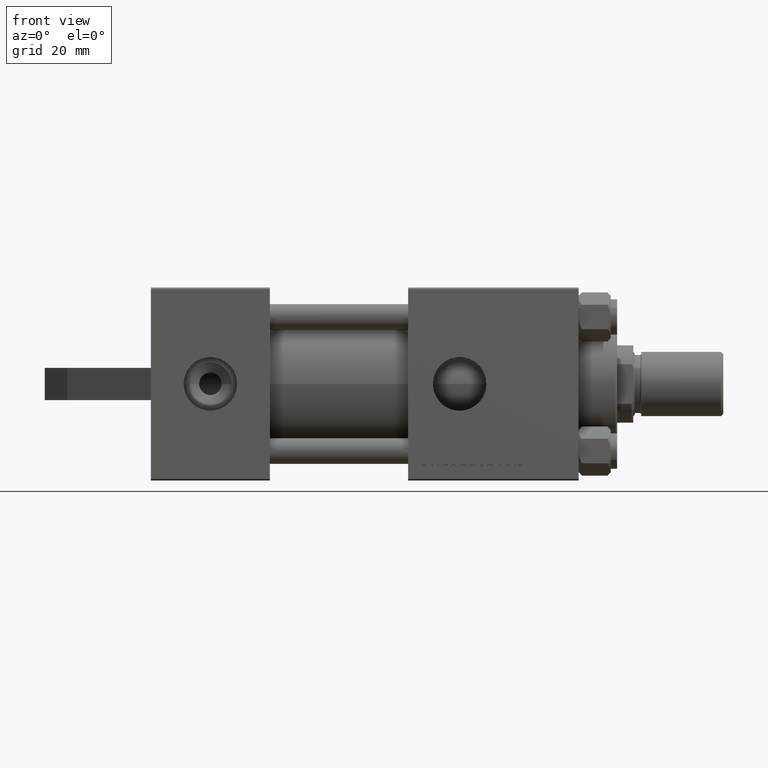
[diagram: clean part render]
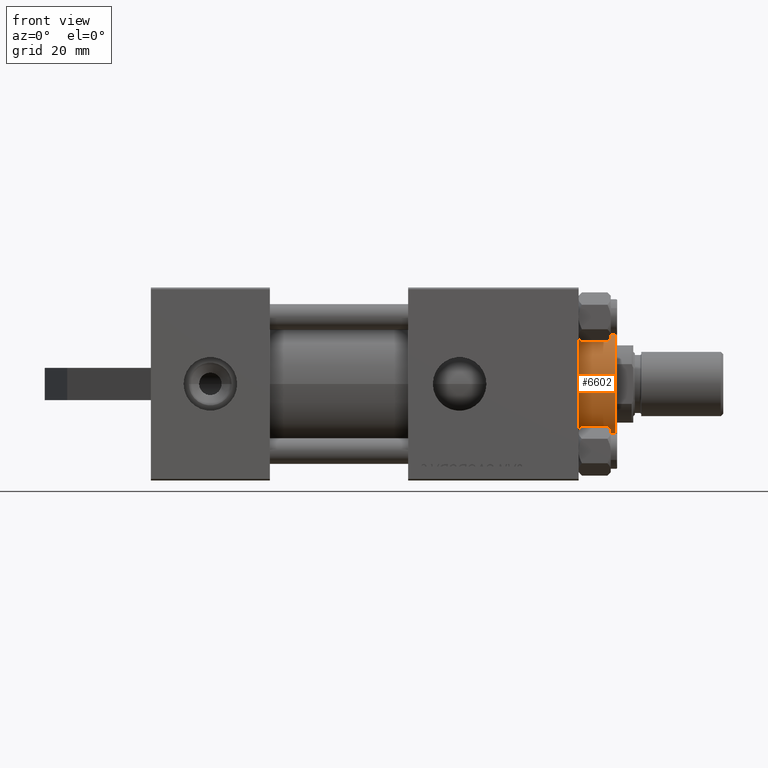
[diagram: same view with one face highlighted and labeled with its STEP entity id]
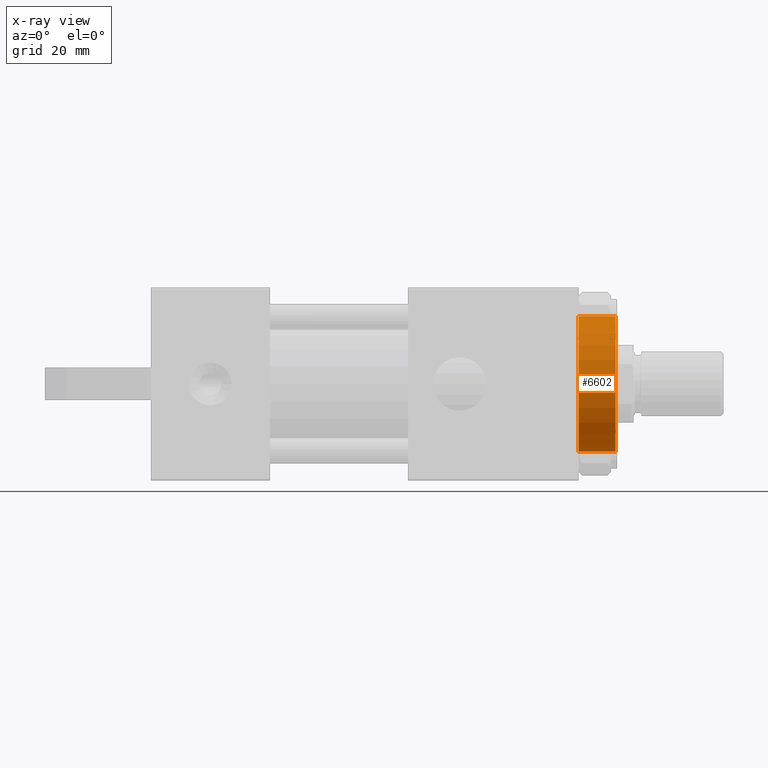
[diagram: x-ray of the same camera — body ghosted, the highlighted face saturated]
A machine part, front view. The second image highlights one B-rep face of the part: STEP entity #6602.
The next image is the same camera in x-ray: the body ghosted, the highlighted face saturated — about 2% of this face is hidden behind the body in this view.
In plain terms, the highlighted cylindrical surface (partial cylindrical patch) has radius 21 mm, axis along (-1, -0, -0).
Its self-contained STEP definition (entity closure, byte-faithful):
#937 = EDGE_CURVE ( 'NONE', #36101, #2443, #1411, .T. ) ;
#1048 = EDGE_CURVE ( 'NONE', #11026, #36101, #35443, .T. ) ;
#1411 = CIRCLE ( 'NONE', #38208, 21.00000000000000000 ) ;
#1956 = DIRECTION ( 'NONE',  ( 1.000000000000000000, 0.000000000000000000, 0.000000000000000000 ) ) ;
#2443 = VERTEX_POINT ( 'NONE', #37642 ) ;
#3712 = ORIENTED_EDGE ( 'NONE', *, *, #14994, .F. ) ;
#5166 = CARTESIAN_POINT ( 'NONE',  ( 21.00000000000000000, 2.571758278209441661E-15, 40.70000000000000284 ) ) ;
#5490 = DIRECTION ( 'NONE',  ( 0.000000000000000000, 0.000000000000000000, -1.000000000000000000 ) ) ;
#5836 = DIRECTION ( 'NONE',  ( 0.000000000000000000, 0.000000000000000000, 1.000000000000000000 ) ) ;
#6377 = ORIENTED_EDGE ( 'NONE', *, *, #1048, .T. ) ;
#6602 = ADVANCED_FACE ( 'NONE', ( #26456 ), #19853, .T. ) ;
#8186 = VECTOR ( 'NONE', #17564, 1000.000000000000000 ) ;
#8300 = AXIS2_PLACEMENT_3D ( 'NONE', #15839, #5490, #1956 ) ;
#9252 = CARTESIAN_POINT ( 'NONE',  ( 21.00000000000000000, 2.571758278209441661E-15, 40.19999999999998863 ) ) ;
#9332 = ORIENTED_EDGE ( 'NONE', *, *, #937, .T. ) ;
#9364 = CARTESIAN_POINT ( 'NONE',  ( 0.000000000000000000, 0.000000000000000000, 28.69999999999999929 ) ) ;
#11026 = VERTEX_POINT ( 'NONE', #16782 ) ;
#11833 = CARTESIAN_POINT ( 'NONE',  ( -21.00000000000000000, 0.000000000000000000, 28.69999999999999929 ) ) ;
#11927 = EDGE_LOOP ( 'NONE', ( #3712, #20195, #6377, #9332 ) ) ;
#13032 = DIRECTION ( 'NONE',  ( -1.000000000000000000, 0.000000000000000000, 0.000000000000000000 ) ) ;
#14994 = EDGE_CURVE ( 'NONE', #31518, #2443, #22574, .T. ) ;
#15839 = CARTESIAN_POINT ( 'NONE',  ( 0.000000000000000000, 0.000000000000000000, 40.19999999999998863 ) ) ;
#16617 = AXIS2_PLACEMENT_3D ( 'NONE', #45250, #36391, #13032 ) ;
#16782 = CARTESIAN_POINT ( 'NONE',  ( -21.00000000000000000, 0.000000000000000000, 40.19999999999998863 ) ) ;
#17564 = DIRECTION ( 'NONE',  ( -0.000000000000000000, -0.000000000000000000, -1.000000000000000000 ) ) ;
#18063 = CIRCLE ( 'NONE', #8300, 21.00000000000000000 ) ;
#19853 = CYLINDRICAL_SURFACE ( 'NONE', #16617, 21.00000000000000000 ) ;
#20195 = ORIENTED_EDGE ( 'NONE', *, *, #36156, .T. ) ;
#22574 = LINE ( 'NONE', #5166, #29541 ) ;
#23260 = DIRECTION ( 'NONE',  ( 1.000000000000000000, 0.000000000000000000, 0.000000000000000000 ) ) ;
#26456 = FACE_OUTER_BOUND ( 'NONE', #11927, .T. ) ;
#29541 = VECTOR ( 'NONE', #33865, 1000.000000000000000 ) ;
#31518 = VERTEX_POINT ( 'NONE', #9252 ) ;
#33865 = DIRECTION ( 'NONE',  ( -0.000000000000000000, -0.000000000000000000, -1.000000000000000000 ) ) ;
#35443 = LINE ( 'NONE', #45336, #8186 ) ;
#36101 = VERTEX_POINT ( 'NONE', #11833 ) ;
#36156 = EDGE_CURVE ( 'NONE', #31518, #11026, #18063, .T. ) ;
#36391 = DIRECTION ( 'NONE',  ( -0.000000000000000000, -0.000000000000000000, -1.000000000000000000 ) ) ;
#37642 = CARTESIAN_POINT ( 'NONE',  ( 21.00000000000000000, 2.571758278209441661E-15, 28.69999999999999929 ) ) ;
#38208 = AXIS2_PLACEMENT_3D ( 'NONE', #9364, #5836, #23260 ) ;
#45250 = CARTESIAN_POINT ( 'NONE',  ( 0.000000000000000000, 0.000000000000000000, 40.70000000000000284 ) ) ;
#45336 = CARTESIAN_POINT ( 'NONE',  ( -21.00000000000000000, 0.000000000000000000, 40.70000000000000284 ) ) ;